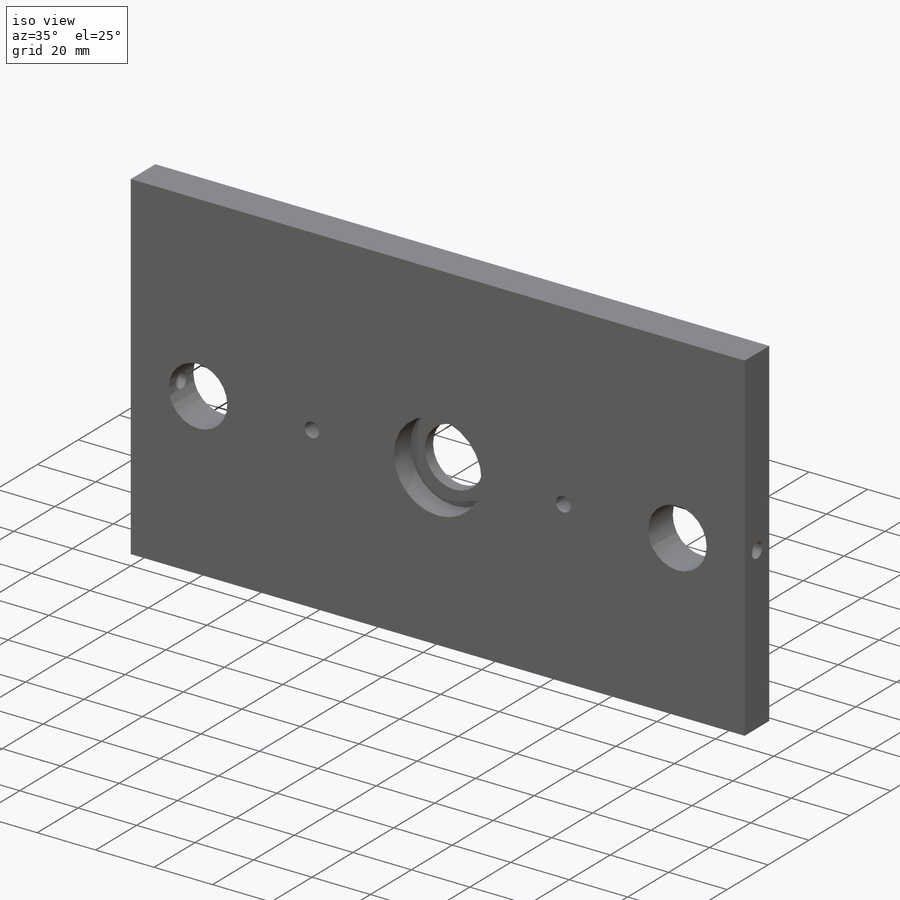
[diagram: iso view]
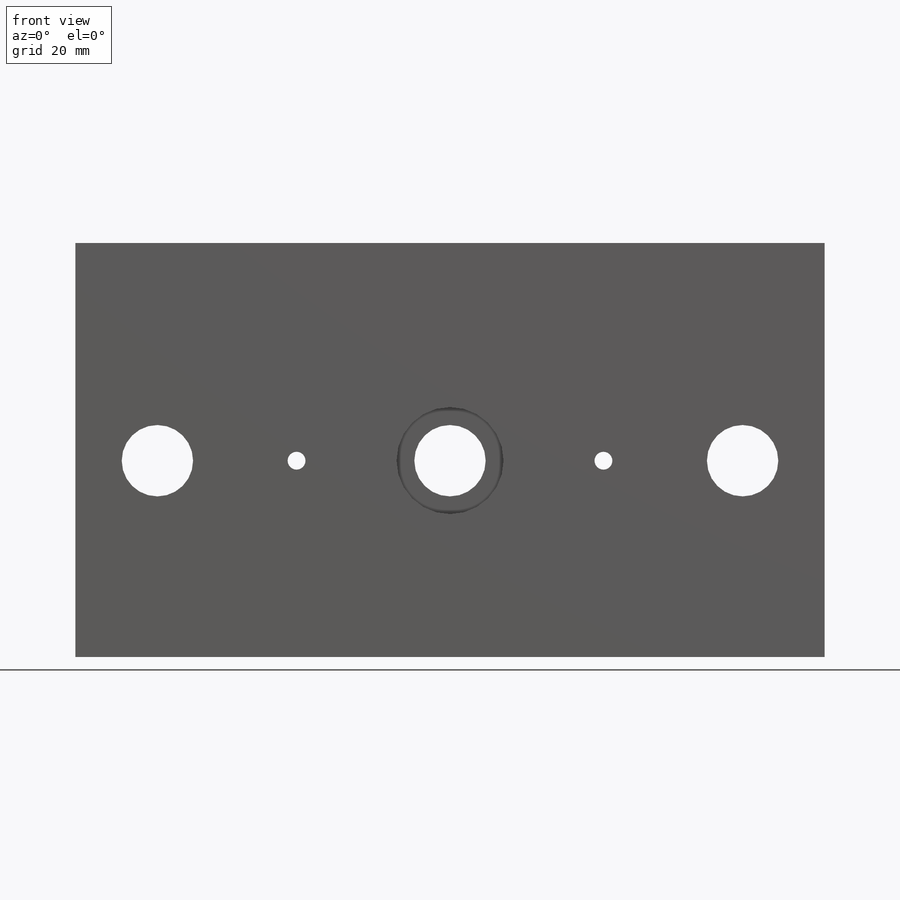
[diagram: front view]
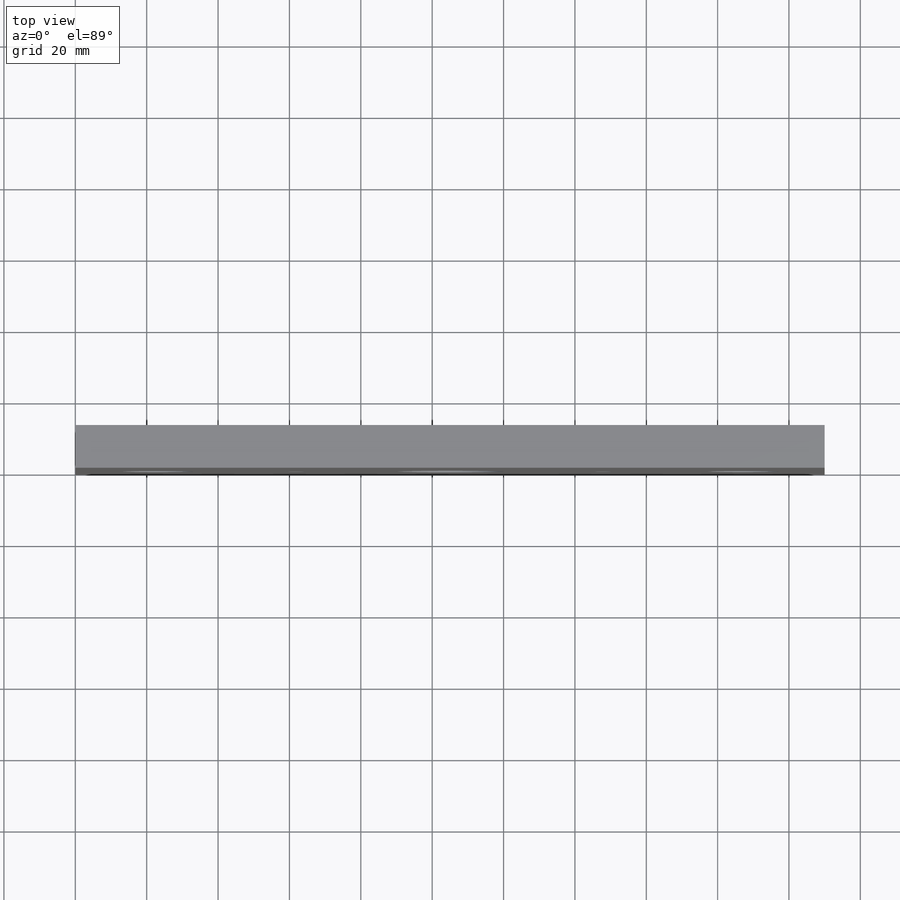
[diagram: top view]
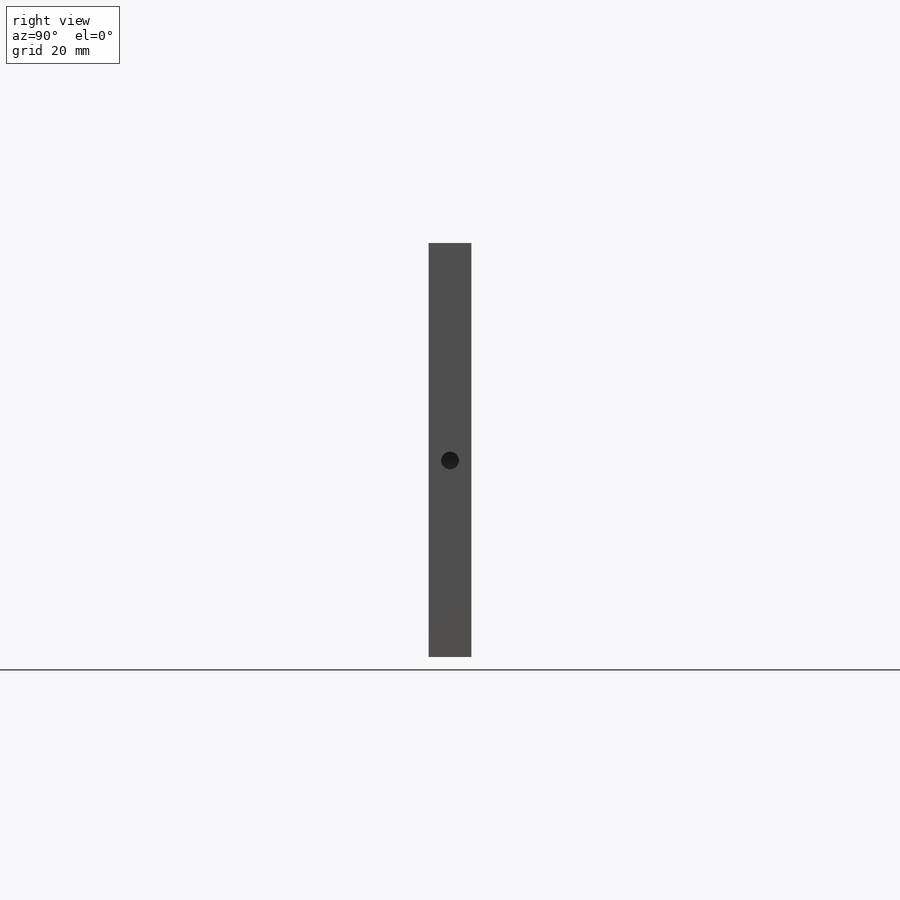
[diagram: right view]
SOLIDWORKS PART (.sldprt)
format: sldprt  version: not decoded by parser v0  size: 310,272 bytes
history: native  units: mm
features: sketch x12, hole x4, cut_extrude x3, material x1, extrude x1 (+12 scaffold rows collapsed)
feature tree (33):
  scaffold x12  (default folders/planes/origin — collapsed)
  material  "Material <not specified>"
  sketch  "Sketch1"  dims[D1=12.0mm D2=210.0mm]
  extrude  "Boss-Extrude1"  Depth=116mm
  sketch  "Sketch2"  dims[D1=55.0mm D2=55.0mm D3=23.0mm D4=23.0mm]
  cut_extrude  "Cut-Extrude1"  [1 undecoded]
  hole  "Ø5.0mm Dowel Hole1"  Diameter=5mm Depth=25mm
  sketch  "Sketch4"  dims[D1=6.0mm D2=55.0mm]
  sketch  "Sketch3"  dims[hole-wizard template sketch: 47 standard entries collapsed; hole parameters kept: c15.Hole Depth=25.0mm c15.D3=~14.816244mm c15.Drill Angle=118.0deg]
  hole  "Ø5.0mm Dowel Hole2"  Diameter=5mm Depth=25mm
  sketch  "Sketch6"  dims[D1=55.0mm D2=6.0mm]
  sketch  "Sketch5"  dims[hole-wizard template sketch: 47 standard entries collapsed; hole parameters kept: c15.Hole Depth=25.0mm c15.D3=~14.816244mm c15.Drill Angle=118.0deg]
  sketch  "Sketch7"  dims[D1=20.0mm D2=55.0mm D3=105.0mm]
  cut_extrude  "Cut-Extrude2"  [1 undecoded]
  sketch  "Sketch8"  dims[D1=30.0mm]
  cut_extrude  "Cut-Extrude3"  Depth=8mm
  hole  "Ø5.0mm Dowel Hole3"  Diameter=5mm Depth=12mm
  sketch  "Sketch10"  dims[D1=6.0mm D2=6.0mm D3=6.0mm D4=25.0mm D5=25.0mm D6=105.0mm]
  sketch  "Sketch9"  dims[hole-wizard template sketch: 47 standard entries collapsed; hole parameters kept: c15.Hole Depth=12.0mm c15.D3=~14.816244mm c15.Drill Angle=118.0deg]
  hole  "Ø5.0mm Dowel Hole4"  Diameter=5mm Depth=25mm
  sketch  "Sketch12"  dims[D1=55.0mm D2=55.0mm D3=86.0mm D4=43.0mm]
  sketch  "Sketch11"  dims[hole-wizard template sketch: 47 standard entries collapsed; hole parameters kept: c15.Hole Depth=25.0mm c15.D3=~14.816244mm c15.Drill Angle=118.0deg]
decode coverage: 18 of 20 modeling features carry decoded parameters
note: ~ marks probable driven/reference dimensions
note: 2 parameter values undecoded
summary: Diameter pulled from absorbed wizard sketch
note: suppression state not decoded; provenance and decode notes live in map.json
